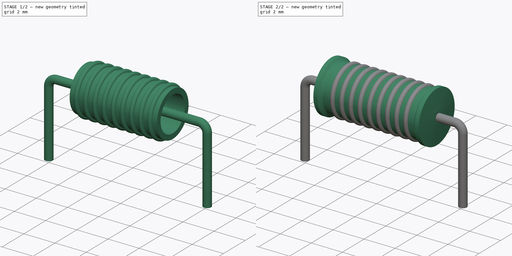
[diagram: build sequence overview — one tinted view per stage of 2, left to right]
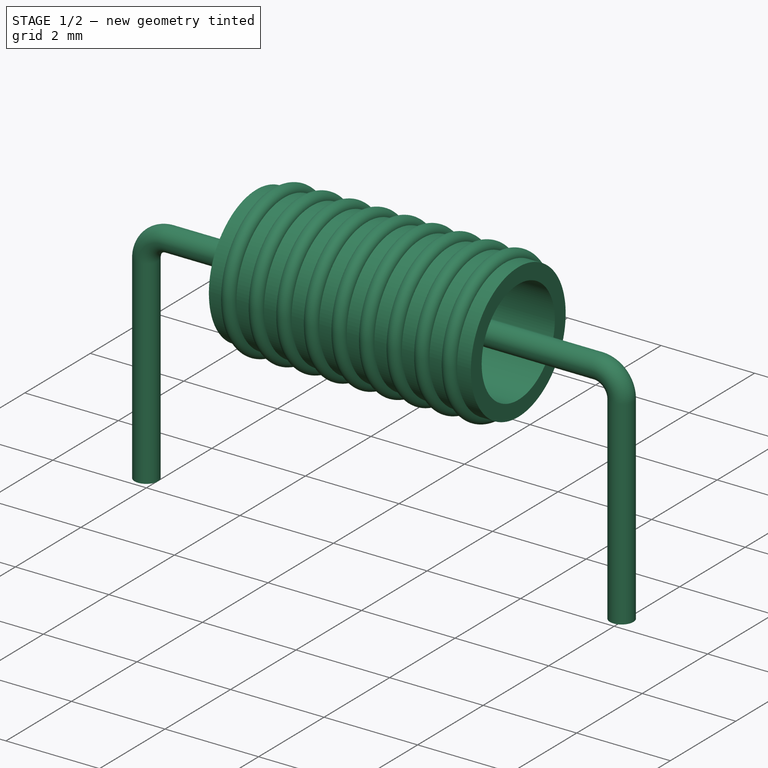
[diagram: stage 1 of 2 — iso view after this stage's code; geometry added in this stage tinted green]
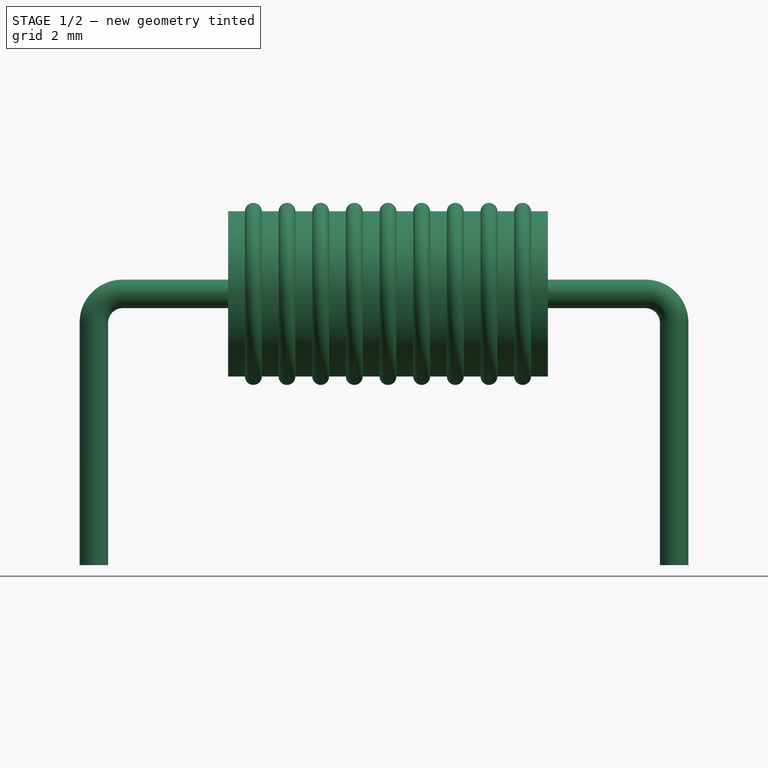
[diagram: stage 1 of 2 — front view after this stage's code; geometry added in this stage tinted green]
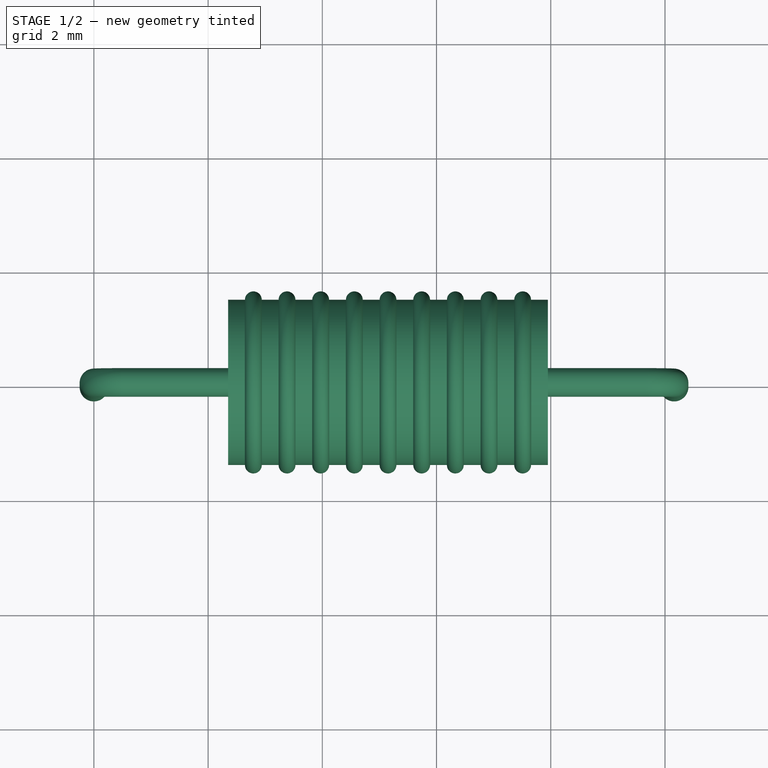
[diagram: stage 1 of 2 — top view after this stage's code; geometry added in this stage tinted green]
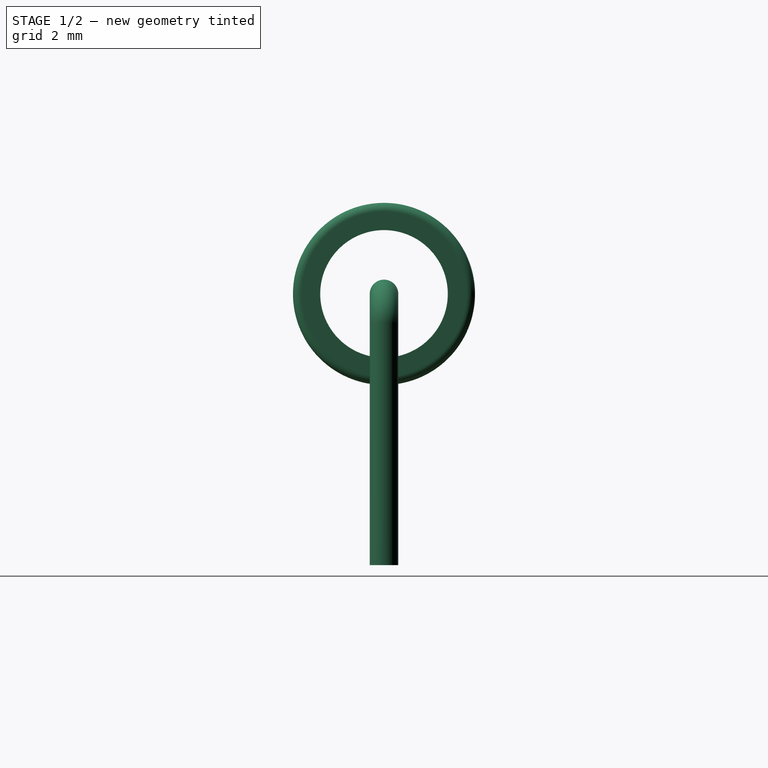
[diagram: stage 1 of 2 — right view after this stage's code; geometry added in this stage tinted green]
FCSTD DOCUMENT  (FreeCAD 0.16R6712 (Git))
Label: L_Axial_L7.0mm_D3.3mm_P10.16mm_Horizontal_Fastron_MICC
License: All rights reserved
LicenseURL: http://en.wikipedia.org/wiki/All_rights_reserved
objects: Sketcher::SketchObject×4, PartDesign::Revolution×2, Spreadsheet::Sheet×1, Part::Sweep×1, Part::MultiFuse×1
note: 10 computed .brp shape members not serialized (recipe doc carries the construction recipe); baked Part::Feature solids carry a one-line shape summary decoded from their .brp

FEATURE [Spreadsheet::Sheet] Spreadsheet  label="dimensions"
  cells = A1=L; B1(L)=7; A2=d; B2(d)=3.3; C2=0; A3=RM; B3(RM)=10.16; C3=0; A4=d_wire; B4(d_wire)=0.5
FEATURE [Sketcher::SketchObject] Sketch
  Placement = pos=(0,0,-2) rot=(0,0,1;0rad)
  expr: Constraints[1] = dimensions.d_wire / 2
  sketch-geometry (1):
    g0: Circle CenterX=0 CenterY=0 CenterZ=0 NormalX=0 NormalY=0 NormalZ=1 Radius=0.25
  constraints (2):
    c: Coincident(g0,g-1)
    c: Radius(g0) = 0.25
FEATURE [Part::Sweep] Sweep
  Frenet = false
  Sections = -> [Sketch]
  Solid = true
  Spine = -> Sketch001
  Transition = 1
FEATURE [Sketcher::SketchObject] Sketch003  label="Axis001"
  Placement = pos=(0,0,0) rot=(1,0,0;1.5708rad)
  expr: Constraints[83] = dimensions.L * 0.8 / 19
  expr: Constraints[81] = dimensions.L * 0.8 / 19 / 2
  expr: Constraints[62] = dimensions.d / 2 - dimensions.L * 0.029
  expr: Constraints[70] = dimensions.d * 0.1
  expr: Constraints[78] = dimensions.L * 0.8 / 19 / 2
  expr: Constraints[6] = dimensions.d / 2 + 0.1
  expr: Constraints[72] = dimensions.L * 0.08500000000000001
  expr: Constraints[76] = dimensions.L * 0.8 / 19 / 2
  expr: Constraints[37] = dimensions.L * 0.8 / 19 / 2
  expr: Constraints[5] = (dimensions.RM - dimensions.L * 0.95) / 2
  expr: Constraints[75] = dimensions.L * 0.8 / 19 / 2
  expr: Constraints[80] = dimensions.L * 0.8 / 19 / 2
  expr: Constraints[79] = dimensions.L * 0.8 / 19 / 2
  expr: Constraints[82] = dimensions.L * 0.8 / 19 / 2
  expr: Constraints[77] = dimensions.L * 0.8 / 19 / 2
  sketch-geometry (26):
    g0: LineSegment [constr] StartX=1.755 StartY=1.75 StartZ=0 EndX=1.755 EndY=0 EndZ=0
    g1: LineSegment [constr] StartX=1.755 StartY=0 StartZ=0 EndX=0 EndY=0 EndZ=0
    g2: LineSegment [constr] StartX=106.607 StartY=-10.5398 StartZ=0 EndX=-91.3675 EndY=-10.5398 EndZ=0
    g3: LineSegment [constr] StartX=1.755 StartY=1.75 StartZ=0 EndX=11.16 EndY=1.75 EndZ=0
    g4: ArcOfCircle CenterX=2.79211 CenterY=3.197 CenterZ=0 NormalX=0 NormalY=0 NormalZ=1 Radius=0.147368 StartAngle=0 EndAngle=3.14159
    g5: ArcOfCircle CenterX=3.38158 CenterY=3.197 CenterZ=0 NormalX=0 NormalY=0 NormalZ=1 Radius=0.147368 StartAngle=0 EndAngle=3.14159
    g6: ArcOfCircle CenterX=3.97105 CenterY=3.197 CenterZ=0 NormalX=0 NormalY=0 NormalZ=1 Radius=0.147368 StartAngle=0 EndAngle=3.14159
    g7: ArcOfCircle CenterX=4.56053 CenterY=3.197 CenterZ=0 NormalX=0 NormalY=0 NormalZ=1 Radius=0.147368 StartAngle=0 EndAngle=3.14159
    g8: ArcOfCircle CenterX=5.15 CenterY=3.197 CenterZ=0 NormalX=0 NormalY=0 NormalZ=1 Radius=0.147368 StartAngle=0 EndAngle=3.14159
    g9: ArcOfCircle CenterX=5.73947 CenterY=3.197 CenterZ=0 NormalX=0 NormalY=0 NormalZ=1 Radius=0.147368 StartAngle=0 EndAngle=3.14159
    g10: ArcOfCircle CenterX=6.32895 CenterY=3.197 CenterZ=0 NormalX=0 NormalY=0 NormalZ=1 Radius=0.147368 StartAngle=0 EndAngle=3.14159
    g11: ArcOfCircle CenterX=6.91842 CenterY=3.197 CenterZ=0 NormalX=0 NormalY=0 NormalZ=1 Radius=0.147368 StartAngle=0 EndAngle=3.14159
    g12: ArcOfCircle CenterX=7.50789 CenterY=3.197 CenterZ=0 NormalX=0 NormalY=0 NormalZ=1 Radius=0.147368 StartAngle=0 EndAngle=3.14159
    g13: LineSegment StartX=2.35 StartY=3.197 StartZ=0 EndX=2.64474 EndY=3.197 EndZ=0
    g14: LineSegment StartX=2.93947 StartY=3.197 StartZ=0 EndX=3.23421 EndY=3.197 EndZ=0
    g15: LineSegment StartX=3.52895 StartY=3.197 StartZ=0 EndX=3.82368 EndY=3.197 EndZ=0
    g16: LineSegment StartX=4.11842 StartY=3.197 StartZ=0 EndX=4.41316 EndY=3.197 EndZ=0
    g17: LineSegment StartX=4.70789 StartY=3.197 StartZ=0 EndX=5.00263 EndY=3.197 EndZ=0
    g18: LineSegment StartX=5.29737 StartY=3.197 StartZ=0 EndX=5.59211 EndY=3.197 EndZ=0
    g19: LineSegment StartX=5.88684 StartY=3.197 StartZ=0 EndX=6.18158 EndY=3.197 EndZ=0
    g20: LineSegment StartX=6.47632 StartY=3.197 StartZ=0 EndX=6.77105 EndY=3.197 EndZ=0
    g21: LineSegment StartX=7.06579 StartY=3.197 StartZ=0 EndX=7.36053 EndY=3.197 EndZ=0
    g22: LineSegment StartX=7.65526 StartY=3.197 StartZ=0 EndX=7.95 EndY=3.197 EndZ=0
    g23: LineSegment StartX=2.35 StartY=3.197 StartZ=0 EndX=2.35 EndY=2.867 EndZ=0
    g24: LineSegment StartX=2.35 StartY=2.867 StartZ=0 EndX=7.95 EndY=2.867 EndZ=0
    g25: LineSegment StartX=7.95 StartY=2.867 StartZ=0 EndX=7.95 EndY=3.197 EndZ=0
  constraints (84):
    c: DistanceX(g0,g3) = 9.405
    c: Vertical(g0)
    c: Coincident(g1,g0)
    c: Coincident(g1,g-1)
    c: Horizontal(g1)
    c: DistanceX(g1,g1) = 1.755
    c: DistanceY(g0,g0) = 1.75
    c: Coincident(g13,g4)
    c: Coincident(g14,g4)
    c: Coincident(g14,g5)
    c: Coincident(g15,g5)
    c: Coincident(g15,g6)
    c: Coincident(g16,g6)
    c: Coincident(g16,g7)
    c: Coincident(g17,g7)
    c: Coincident(g17,g8)
    c: Horizontal(g17)
    c: Coincident(g18,g8)
    c: Coincident(g18,g9)
    c: Coincident(g19,g9)
    c: Coincident(g19,g10)
    c: Coincident(g20,g11)
    c: Horizontal(g20)
    c: Coincident(g21,g11)
    c: Coincident(g21,g12)
    c: Horizontal(g21)
    c: Horizontal(g22)
    c: Equal(g14,g13)
    c: Equal(g13,g15)
    c: Equal(g15,g16)
    c: Equal(g16,g17)
    c: Equal(g17,g18)
    c: Equal(g18,g19)
    c: Equal(g19,g20)
    c: Equal(g20,g21)
    c: Equal(g21,g22)
    c: Coincident(g10,g20)
    c: Radius(g8) = 0.147368
    c: Coincident(g22,g12)
    c: Horizontal(g14)
    c: Horizontal(g15)
    c: Horizontal(g16)
    c: Horizontal(g18)
    c: Horizontal(g19)
    c: DistanceY(g12,g12) = 0
    c: DistanceY(g11,g11) = 0
    c: DistanceY(g10,g10) = 0
    c: DistanceY(g9,g9) = 0
    c: DistanceY(g8,g8) = 0
    c: DistanceY(g7,g7) = 0
    c: DistanceY(g4,g4) = 0
    c: DistanceY(g5,g5) = 0
    c: DistanceY(g4,g4) = 0
    c: DistanceY(g5,g5) = 0
    c: DistanceY(g6,g6) = 0
    c: DistanceY(g6,g6) = 0
    c: DistanceY(g7,g7) = 0
    c: DistanceY(g8,g8) = 0
    c: DistanceY(g9,g9) = 0
    c: DistanceY(g10,g10) = 0
    c: DistanceY(g11,g11) = 0
    c: DistanceY(g12,g12) = 0
    c: DistanceY(g0,g13) = 1.447
    c: Horizontal(g13)
    c: Coincident(g23,g13)
    c: Vertical(g23)
    c: Horizontal(g24)
    c: Coincident(g25,g24)
    c: Coincident(g25,g22)
    c: Vertical(g25)
    c: DistanceY(g24,g22) = 0.33
    c: Coincident(g23,g24)
    c: DistanceX(g0,g23) = 0.595
    c: Horizontal(g3)
    c: Coincident(g3,g0)
    c: Radius(g4) = 0.147368
    c: Radius(g5) = 0.147368
    c: Radius(g6) = 0.147368
    c: Radius(g7) = 0.147368
    c: Radius(g10) = 0.147368
    c: Radius(g9) = 0.147368
    c: Radius(g11) = 0.147368
    c: Radius(g12) = 0.147368
    c: DistanceX(g13,g13) = 0.294737
FEATURE [PartDesign::Revolution] Revolution001
  Angle = 360
  Axis = (9.405,0,0)
  Base = (1.755,0,1.75)
  Placement = pos=(0,0,0) rot=(1,0,0;1.5708rad)
  ReferenceAxis = -> Sketch003 [Axis3]
  Sketch = -> Sketch003
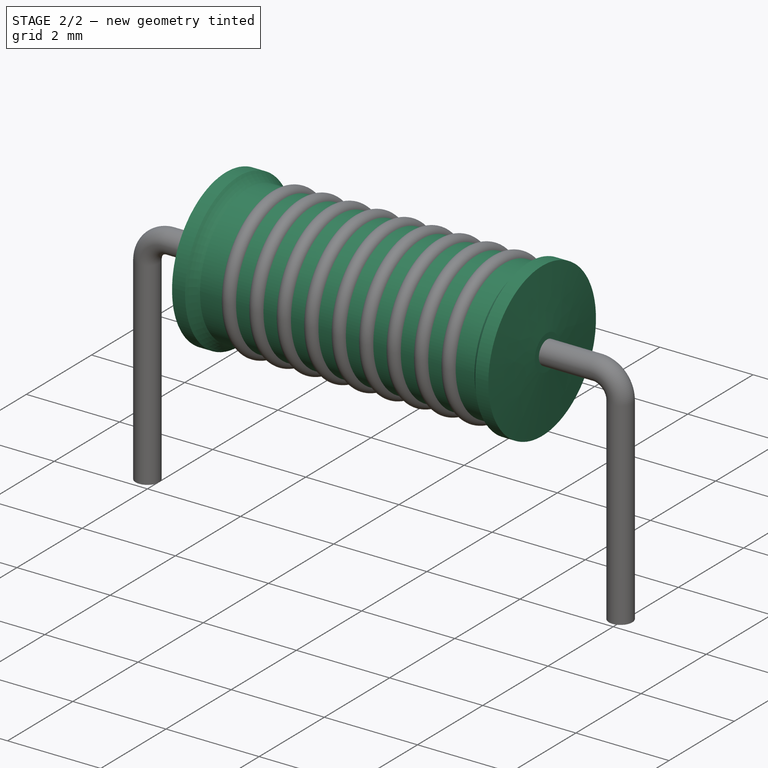
[diagram: stage 2 of 2 — iso view after this stage's code; geometry added in this stage tinted green]
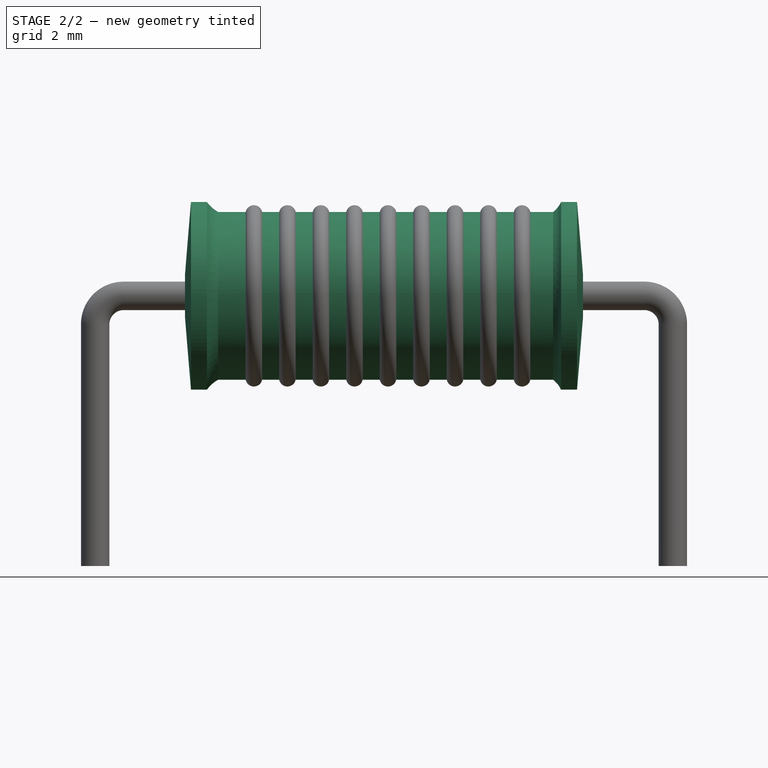
[diagram: stage 2 of 2 — front view after this stage's code; geometry added in this stage tinted green]
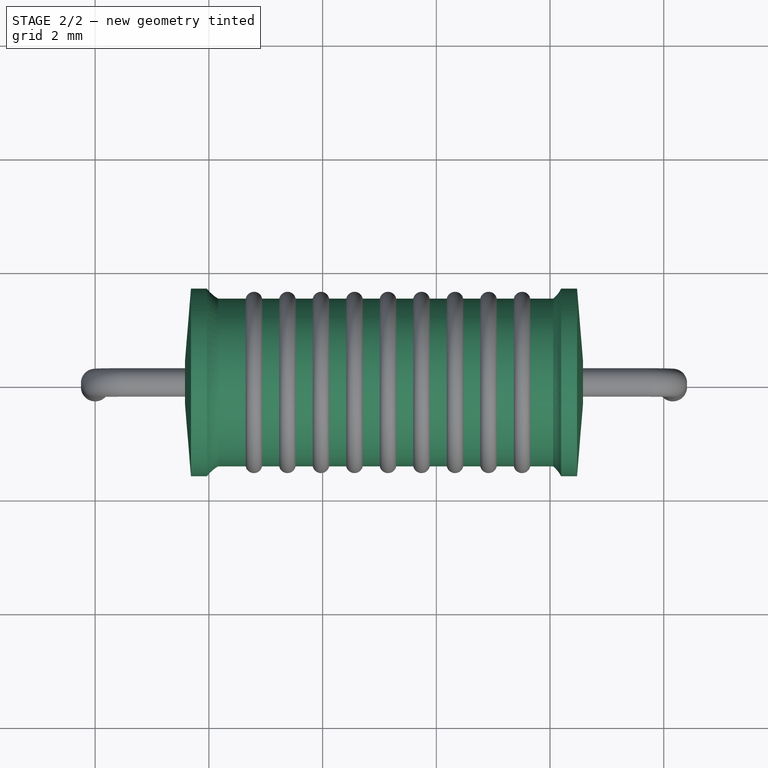
[diagram: stage 2 of 2 — top view after this stage's code; geometry added in this stage tinted green]
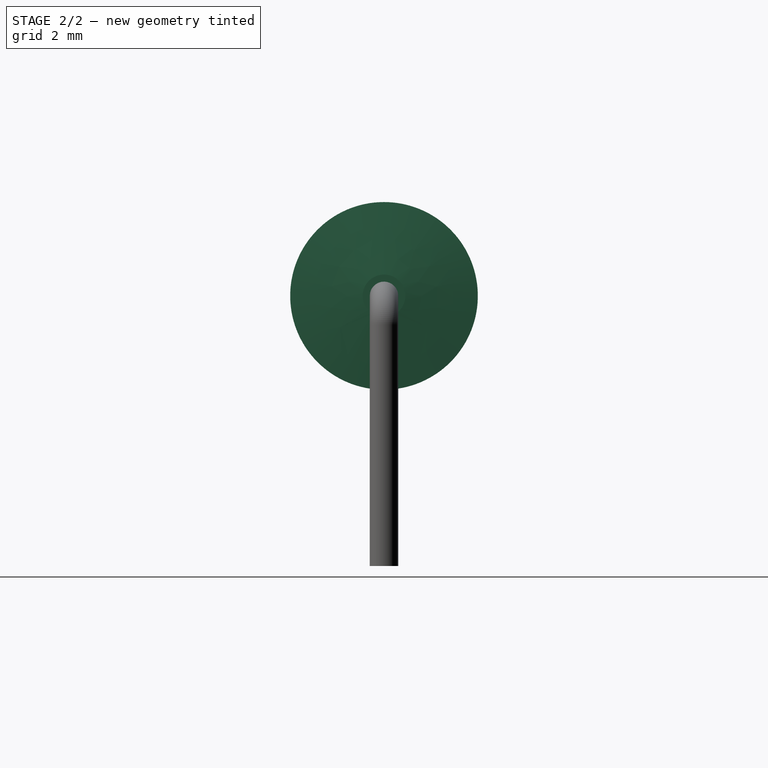
[diagram: stage 2 of 2 — right view after this stage's code; geometry added in this stage tinted green]
FEATURE [Sketcher::SketchObject] Sketch001
  Placement = pos=(0,0,0) rot=(1,0,0;1.5708rad)
  expr: Constraints[15] = dimensions.d_wire
  expr: Constraints[20] = dimensions.d_wire
  expr: Constraints[18] = dimensions.d / 2 + 0.1
  expr: Constraints[12] = dimensions.RM
  expr: Constraints[7] = dimensions.d_wire
  sketch-geometry (7):
    g0: LineSegment StartX=0 StartY=-3 StartZ=0 EndX=0 EndY=1.25 EndZ=0
    g1: ArcOfCircle CenterX=0.5 CenterY=1.25 CenterZ=0 NormalX=0 NormalY=0 NormalZ=1 Radius=0.5 StartAngle=1.57082 EndAngle=3.14159
    g2: LineSegment [constr] StartX=0 StartY=1.25 StartZ=0 EndX=0.5 EndY=1.25 EndZ=0
    g3: LineSegment [constr] StartX=0.5 StartY=1.25 StartZ=0 EndX=0.5 EndY=1.75 EndZ=0
    g4: LineSegment StartX=0.49999 StartY=1.75 StartZ=0 EndX=9.66 EndY=1.75 EndZ=0
    g5: LineSegment StartX=10.16 StartY=1.25 StartZ=0 EndX=10.16 EndY=-3 EndZ=0
    g6: ArcOfCircle CenterX=9.66 CenterY=1.25 CenterZ=0 NormalX=0 NormalY=0 NormalZ=1 Radius=0.5 StartAngle=0 EndAngle=1.5708
  constraints (23):
    c: Vertical(g0)
    c: Coincident(g1,g0)
    c: Coincident(g2,g0)
    c: Coincident(g2,g1)
    c: Horizontal(g2)
    c: Coincident(g3,g1)
    c: Vertical(g3)
    c: DistanceY(g3,g3) = 0.5
    c: Coincident(g4,g1)
    c: Horizontal(g4)
    c: Vertical(g5)
    c: Equal(g5,g0)
    c: DistanceX(g-1,g5) = 10.16
    c: Coincident(g6,g4)
    c: Coincident(g6,g5)
    c: DistanceX(g6,g5) = 0.5
    c: PointOnObject(g0,g-2)
    c: DistanceY(g0,g-1) = 3
    c: DistanceY(g-1,g1) = 1.75
    c: DistanceY(g0,g5) = 0
    c: DistanceX(g0,g1) = 0.5
    c: DistanceX(g6,g4) = 0
    c: DistanceY(g6,g5) = 0
FEATURE [Sketcher::SketchObject] Sketch002  label="Axis0"
  Placement = pos=(0,0,0) rot=(1,0,0;1.5708rad)
  expr: Constraints[41] = dimensions.L * 0.05
  expr: Constraints[9] = dimensions.d / 2
  expr: Constraints[22] = dimensions.L * 0.015
  expr: Constraints[25] = dimensions.L * 0.05
  expr: Constraints[29] = dimensions.d_wire * 0.75
  expr: Constraints[8] = dimensions.d / 2 + 0.1
  expr: Constraints[18] = dimensions.L * 0.025
  expr: Constraints[1] = dimensions.L
  expr: Constraints[17] = dimensions.L * 0.015
  expr: Constraints[24] = dimensions.L * 0.02
  expr: Constraints[7] = (dimensions.RM - dimensions.L) / 2
  expr: Constraints[14] = dimensions.L * 0.04
  expr: Constraints[23] = dimensions.d / 2
  sketch-geometry (15):
    g0: LineSegment [constr] StartX=1.58 StartY=1.75 StartZ=0 EndX=8.58 EndY=1.75 EndZ=0
    g1: LineSegment [constr] StartX=1.58 StartY=1.75 StartZ=0 EndX=1.58 EndY=0 EndZ=0
    g2: LineSegment [constr] StartX=1.58 StartY=0 StartZ=0 EndX=0 EndY=0 EndZ=0
    g3: LineSegment [constr] StartX=1.685 StartY=3.4 StartZ=0 EndX=1.685 EndY=1.75 EndZ=0
    g4: LineSegment StartX=1.685 StartY=3.4 StartZ=0 EndX=1.965 EndY=3.4 EndZ=0
    g5: ArcOfCircle CenterX=2.513 CenterY=3.82051 CenterZ=0 NormalX=0 NormalY=0 NormalZ=1 Radius=0.690749 StartAngle=3.79611 EndAngle=4.18104
    g6: ArcOfCircle CenterX=7.705 CenterY=3.6485 CenterZ=0 NormalX=0 NormalY=0 NormalZ=1 Radius=0.549411 StartAngle=5.40305 EndAngle=5.81384
    g7: LineSegment StartX=8.195 StartY=3.4 StartZ=0 EndX=8.475 EndY=3.4 EndZ=0
    g8: LineSegment [constr] StartX=229.853 StartY=-16.0321 StartZ=0 EndX=-219.693 EndY=-16.0321 EndZ=0
    g9: LineSegment StartX=1.58 StartY=1.75 StartZ=0 EndX=8.58 EndY=1.75 EndZ=0
    g10: LineSegment StartX=1.58 StartY=1.75 StartZ=0 EndX=1.58 EndY=2.125 EndZ=0
    g11: ArcOfCircle CenterX=229.853 CenterY=-16.0321 CenterZ=0 NormalX=0 NormalY=0 NormalZ=1 Radius=228.994 StartAngle=3.05663 EndAngle=3.06222
    g12: LineSegment StartX=8.58 StartY=1.75 StartZ=0 EndX=8.58 EndY=2.125 EndZ=0
    g13: ArcOfCircle CenterX=-219.693 CenterY=-16.0321 CenterZ=0 NormalX=0 NormalY=0 NormalZ=1 Radius=228.994 StartAngle=0.0793742 EndAngle=0.0849609
    g14: LineSegment StartX=2.163 StartY=3.225 StartZ=0 EndX=8.055 EndY=3.225 EndZ=0
  constraints (45):
    c: Horizontal(g0)
    c: DistanceX(g0,g0) = 7
    c: Coincident(g1,g0)
    c: Vertical(g1)
    c: Coincident(g2,g1)
    c: Coincident(g2,g-1)
    c: Horizontal(g2)
    c: DistanceX(g2,g2) = 1.58
    c: DistanceY(g1,g1) = 1.75
    c: DistanceY(g3,g3) = 1.65
    c: PointOnObject(g3,g0)
    c: Perpendicular(g0,g3)
    c: Coincident(g4,g3)
    c: Horizontal(g4)
    c: DistanceX(g4,g4) = 0.28
    c: Coincident(g5,g4)
    c: DistanceX(g4,g5) = 0.198
    c: DistanceX(g0,g3) = 0.105
    c: DistanceY(g5,g4) = 0.175
    c: Coincident(g7,g6)
    c: Horizontal(g7)
    c: Equal(g7,g4)
    c: DistanceX(g7,g0) = 0.105
    c: DistanceY(g0,g6) = 1.65
    c: DistanceX(g6,g6) = 0.14
    c: DistanceX(g6,g6) = 0.35
    c: Parallel(g0,g8)
    c: Coincident(g9,g0)
    c: Vertical(g10)
    c: DistanceY(g10,g10) = 0.375
    c: Coincident(g11,g10)
    c: Coincident(g11,g3)
    c: Coincident(g11,g8)
    c: Coincident(g10,g0)
    c: Coincident(g12,g0)
    c: Vertical(g12)
    c: Equal(g12,g10)
    c: Coincident(g13,g12)
    c: Coincident(g13,g8)
    c: Coincident(g7,g13)
    c: Coincident(g9,g0)
    c: DistanceX(g5,g5) = 0.35
    c: Horizontal(g14)
    c: Coincident(g14,g6)
    c: Coincident(g14,g5)
FEATURE [PartDesign::Revolution] Revolution
  Angle = 360
  Axis = (7,0,0)
  Base = (1.58,0,1.75)
  Placement = pos=(0,0,0) rot=(1,0,0;1.5708rad)
  ReferenceAxis = -> Sketch002 [Axis0]
  Sketch = -> Sketch002
FEATURE [Part::MultiFuse] Revolution001_mp_cp  label="L_Axial_L7.0mm_D3.3mm_P10.16mm_Horizontal_Fastron_MICC"
  Shapes = -> [Revolution001,Sweep,Revolution]
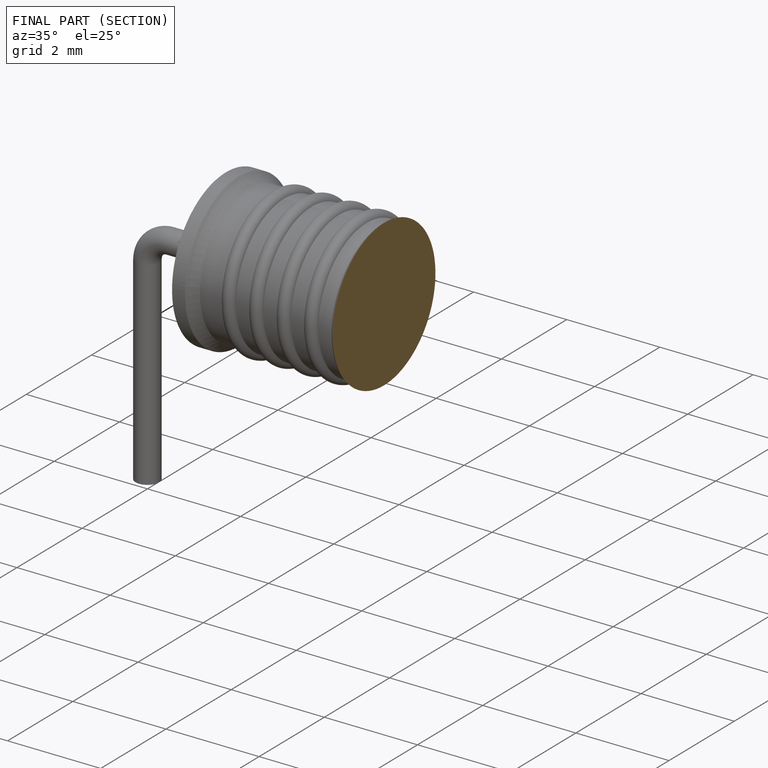
[diagram: finished part — half-section view (interior)]
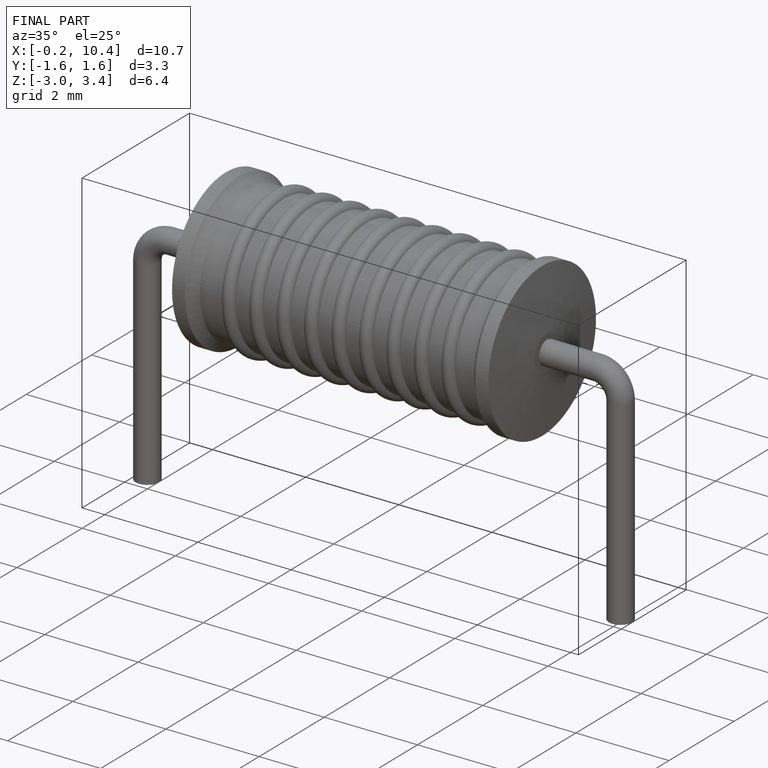
[diagram: finished part — iso view with bounding-box wireframe]
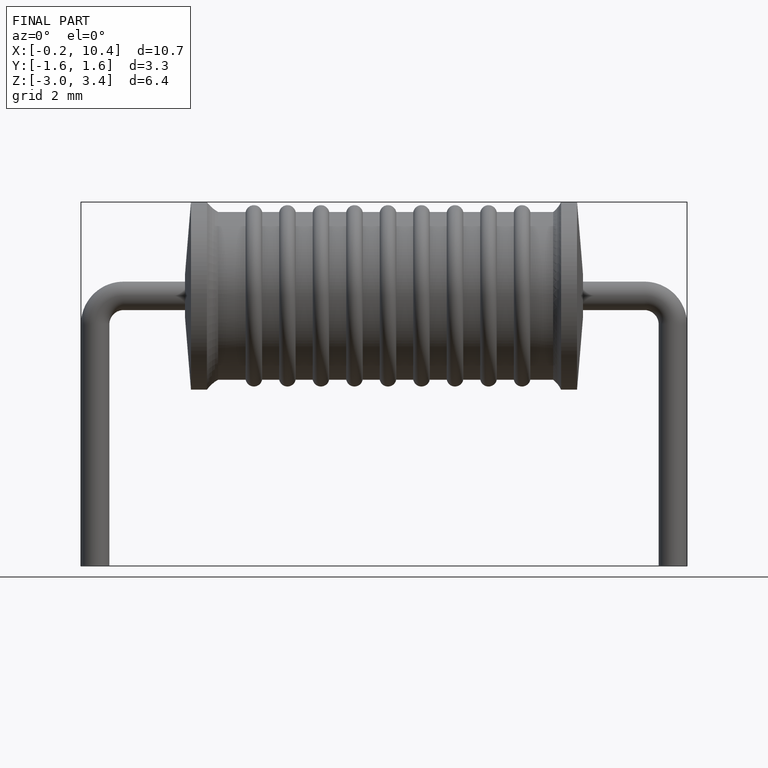
[diagram: finished part — front view with bounding-box wireframe]
